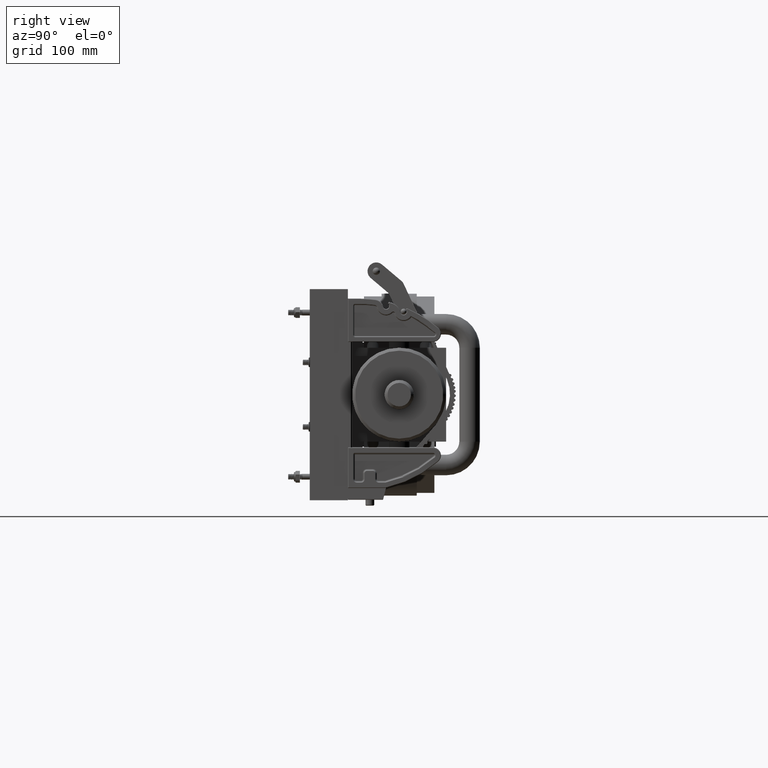
[diagram: clean part render]
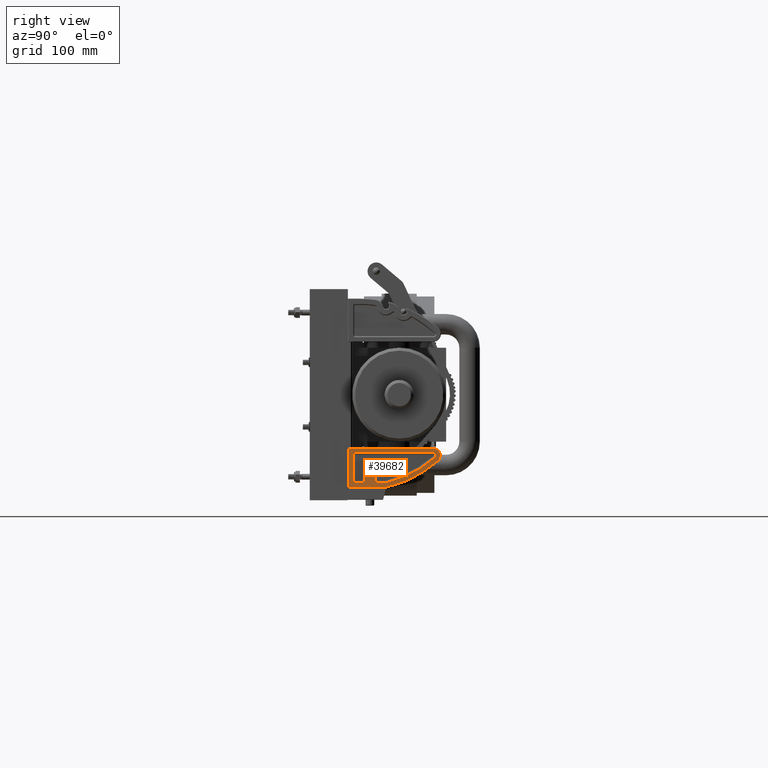
[diagram: same view with one face highlighted and labeled with its STEP entity id]
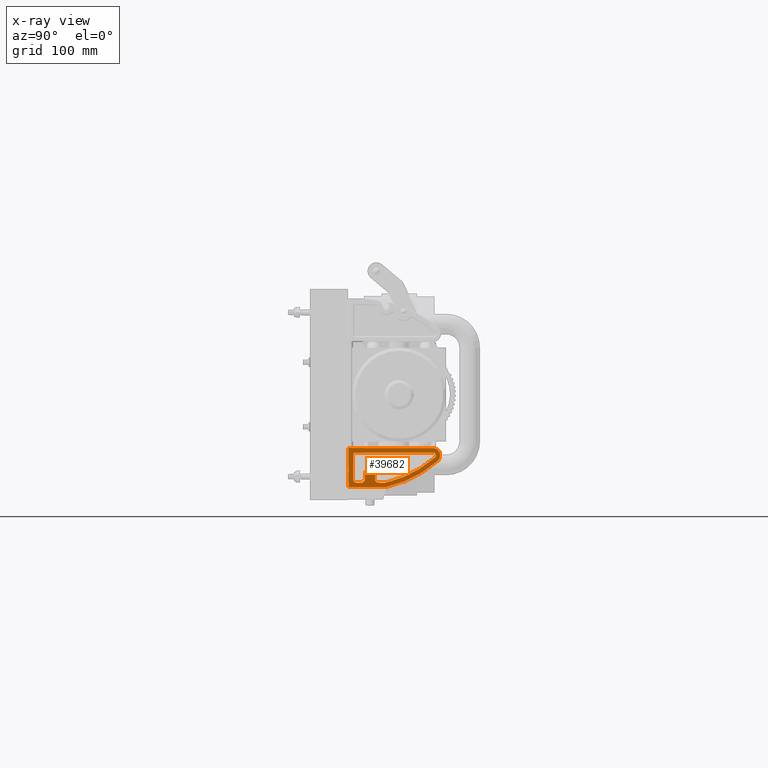
[diagram: x-ray of the same camera — body ghosted, the highlighted face saturated]
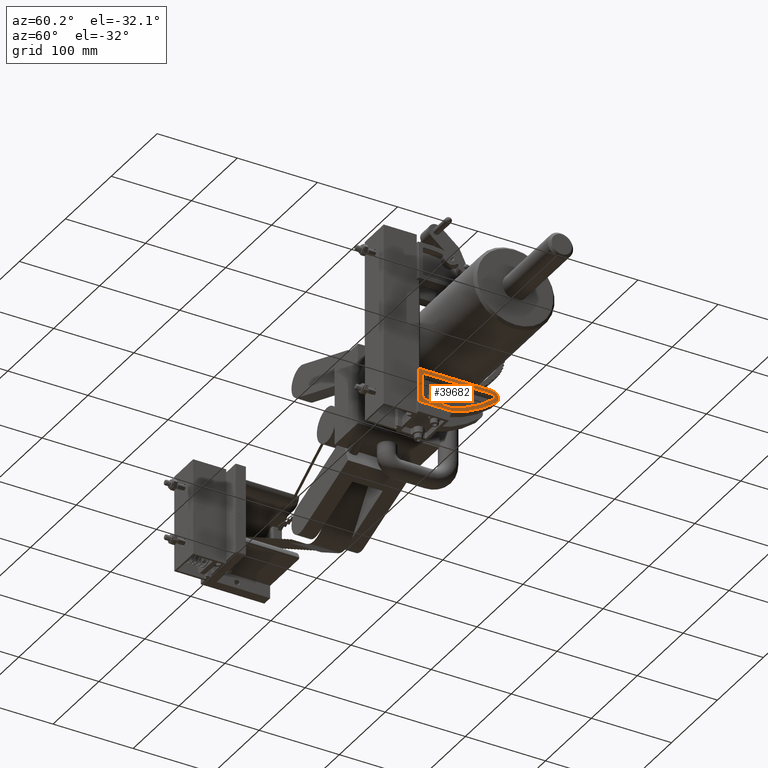
[diagram: same view with one face highlighted and labeled with its STEP entity id]
A machine part, right view. The second image highlights one B-rep face of the part: STEP entity #39682.
The next image is the same camera in x-ray: the body ghosted, the highlighted face saturated — about 0% of this face is hidden behind the body in this view.
A second angle (auxiliary view) of the same face is appended — the face is thin or edge-on in the first view.
In plain terms, the highlighted planar face has unit normal (-1, -0, -0).
Its self-contained STEP definition (entity closure, byte-faithful):
#254 = LINE ( 'NONE', #36982, #31489 ) ;
#265 = DIRECTION ( 'NONE',  ( 1.000000000000000000, -1.757097921636430500E-015, 1.317823441227322800E-015 ) ) ;
#607 = CARTESIAN_POINT ( 'NONE',  ( -1.009250000000006400, 0.8125000000000010000, -0.9375000000000021100 ) ) ;
#989 = CIRCLE ( 'NONE', #38435, 0.1234500000000016600 ) ;
#1190 = CARTESIAN_POINT ( 'NONE',  ( -1.696750000000008900, 0.4999999999999985000, -0.9375000000000044400 ) ) ;
#2075 = EDGE_CURVE ( 'NONE', #11903, #39959, #46503, .T. ) ;
#2553 = FACE_OUTER_BOUND ( 'NONE', #49952, .T. ) ;
#2572 = CARTESIAN_POINT ( 'NONE',  ( -0.3125000000000019400, 0.2187500000000002200, -0.9374999999999997800 ) ) ;
#2977 = DIRECTION ( 'NONE',  ( -7.269321377990959900E-016, -1.000000000000000000, 5.181990859787784600E-016 ) ) ;
#3417 = CARTESIAN_POINT ( 'NONE',  ( -0.5767967427319166100, 3.829225296210325300, -0.9375000000000044400 ) ) ;
#3935 = DIRECTION ( 'NONE',  ( 1.000000000000000000, 7.270329355284151900E-016, 1.426103065844199000E-015 ) ) ;
#4180 = VECTOR ( 'NONE', #49954, 39.37007874015748100 ) ;
#4211 = CARTESIAN_POINT ( 'NONE',  ( -1.353000000000006200, 1.312499999999998000, -0.9375000000000021100 ) ) ;
#4284 = DIRECTION ( 'NONE',  ( 1.195227855658757900E-015, -1.000000000000000000, 5.181990859787815200E-016 ) ) ;
#4768 = ORIENTED_EDGE ( 'NONE', *, *, #16823, .T. ) ;
#4983 = DIRECTION ( 'NONE',  ( -1.000000000000000000, -7.269321377990899800E-016, -1.415534356397068500E-015 ) ) ;
#5196 = DIRECTION ( 'NONE',  ( 1.415534356397079300E-015, -5.181990859787786600E-016, 1.000000000000000000 ) ) ;
#5225 = CIRCLE ( 'NONE', #30424, 0.09375000000000073600 ) ;
#5434 = LINE ( 'NONE', #2572, #36666 ) ;
#6434 = CARTESIAN_POINT ( 'NONE',  ( -1.353000000000000900, 0.2187499999999988600, -0.9375000000000021100 ) ) ;
#6513 = DIRECTION ( 'NONE',  ( -1.415534356397079300E-015, 5.181990859787786600E-016, -1.000000000000000000 ) ) ;
#6875 = EDGE_CURVE ( 'NONE', #22833, #51638, #21789, .T. ) ;
#6913 = VERTEX_POINT ( 'NONE', #47975 ) ;
#7977 = ORIENTED_EDGE ( 'NONE', *, *, #12870, .T. ) ;
#8325 = DIRECTION ( 'NONE',  ( 1.000000000000000000, 0.0000000000000000000, 1.748382715945116000E-015 ) ) ;
#8610 = CARTESIAN_POINT ( 'NONE',  ( -0.2187499999999985800, 0.3125000000000002800, -0.9374999999999997800 ) ) ;
#8671 = EDGE_CURVE ( 'NONE', #25555, #24184, #25809, .T. ) ;
#8678 = DIRECTION ( 'NONE',  ( 1.415534356397079300E-015, -5.181990859787786600E-016, 1.000000000000000000 ) ) ;
#9982 = VERTEX_POINT ( 'NONE', #37273 ) ;
#10396 = VERTEX_POINT ( 'NONE', #11902 ) ;
#10566 = LINE ( 'NONE', #19194, #52636 ) ;
#11499 = EDGE_CURVE ( 'NONE', #21574, #12520, #47502, .T. ) ;
#11902 = CARTESIAN_POINT ( 'NONE',  ( -0.03124999999999983700, 3.625131516786318300, -0.9375000000000032200 ) ) ;
#11903 = VERTEX_POINT ( 'NONE', #41913 ) ;
#12031 = ORIENTED_EDGE ( 'NONE', *, *, #28996, .T. ) ;
#12123 = CARTESIAN_POINT ( 'NONE',  ( -1.509250000000008200, 1.312499999999998000, -0.9375000000000044400 ) ) ;
#12294 = EDGE_CURVE ( 'NONE', #21683, #50777, #42344, .T. ) ;
#12520 = VERTEX_POINT ( 'NONE', #42672 ) ;
#12549 = DIRECTION ( 'NONE',  ( 1.000000000000000000, 7.269321377990899800E-016, 1.415534356397068500E-015 ) ) ;
#12870 = EDGE_CURVE ( 'NONE', #41686, #25555, #254, .T. ) ;
#13240 = AXIS2_PLACEMENT_3D ( 'NONE', #49031, #24670, #265 ) ;
#15024 = VECTOR ( 'NONE', #22419, 39.37007874015748100 ) ;
#15242 = ORIENTED_EDGE ( 'NONE', *, *, #33949, .T. ) ;
#16823 = EDGE_CURVE ( 'NONE', #10396, #42800, #10566, .T. ) ;
#16988 = ORIENTED_EDGE ( 'NONE', *, *, #52745, .T. ) ;
#16996 = DIRECTION ( 'NONE',  ( -7.269321377990959900E-016, -1.000000000000000000, 5.181990859787784600E-016 ) ) ;
#17082 = CARTESIAN_POINT ( 'NONE',  ( -1.353000000000009100, 0.7187499999999995600, -0.9375000000000021100 ) ) ;
#17566 = CARTESIAN_POINT ( 'NONE',  ( -0.3422000000000013400, 3.625131516786317400, -0.9375000000000021100 ) ) ;
#17805 = EDGE_CURVE ( 'NONE', #38956, #25540, #18142, .T. ) ;
#18142 = LINE ( 'NONE', #24218, #38531 ) ;
#19194 = CARTESIAN_POINT ( 'NONE',  ( -0.03125000000000147800, 0.5000000000000010000, -0.9375000000000008900 ) ) ;
#19207 = CARTESIAN_POINT ( 'NONE',  ( -1.509250000000009300, 1.312499999999998000, -0.9375000000000044400 ) ) ;
#19482 = CARTESIAN_POINT ( 'NONE',  ( 3.250000000000018700, 0.5000000000000023300, -0.9374999999999974500 ) ) ;
#19999 = CARTESIAN_POINT ( 'NONE',  ( -1.353000000000006200, 1.156250000000000000, -0.9375000000000021100 ) ) ;
#20526 = ORIENTED_EDGE ( 'NONE', *, *, #30674, .T. ) ;
#21403 = CIRCLE ( 'NONE', #13240, 0.3109500000000026100 ) ;
#21574 = VERTEX_POINT ( 'NONE', #38877 ) ;
#21638 = DIRECTION ( 'NONE',  ( 1.000000000000000000, 0.0000000000000000000, 1.106459292695109900E-015 ) ) ;
#21683 = VERTEX_POINT ( 'NONE', #27323 ) ;
#21789 = CIRCLE ( 'NONE', #49985, 0.1562500000000011100 ) ;
#22251 = AXIS2_PLACEMENT_3D ( 'NONE', #42025, #45953, #50188 ) ;
#22338 = ORIENTED_EDGE ( 'NONE', *, *, #43320, .T. ) ;
#22419 = DIRECTION ( 'NONE',  ( -7.269321377990959900E-016, -1.000000000000000000, 5.181990859787784600E-016 ) ) ;
#22503 = DIRECTION ( 'NONE',  ( -1.415534356397079300E-015, 5.181990859787786600E-016, -1.000000000000000000 ) ) ;
#22833 = VERTEX_POINT ( 'NONE', #32363 ) ;
#23058 = CARTESIAN_POINT ( 'NONE',  ( -1.353000000000000900, 0.3750000000000007800, -0.9375000000000021100 ) ) ;
#23582 = DIRECTION ( 'NONE',  ( 1.000000000000000000, 7.270869001740882000E-016, 1.427244655897284200E-015 ) ) ;
#23624 = ORIENTED_EDGE ( 'NONE', *, *, #8671, .T. ) ;
#23650 = CARTESIAN_POINT ( 'NONE',  ( -0.03125000000000147800, 0.03124999999999983700, -0.9375000000000008900 ) ) ;
#23769 = AXIS2_PLACEMENT_3D ( 'NONE', #46904, #22503, #50979 ) ;
#24184 = VERTEX_POINT ( 'NONE', #41174 ) ;
#24218 = CARTESIAN_POINT ( 'NONE',  ( -0.2187500000000002200, 3.625131516786318300, -0.9375000000000021100 ) ) ;
#24243 = FACE_BOUND ( 'NONE', #39023, .T. ) ;
#24381 = EDGE_CURVE ( 'NONE', #42800, #21574, #46034, .T. ) ;
#24670 = DIRECTION ( 'NONE',  ( -1.415534356397079300E-015, 5.181990859787786600E-016, -1.000000000000000000 ) ) ;
#24833 = LINE ( 'NONE', #607, #45226 ) ;
#24860 = VECTOR ( 'NONE', #4284, 39.37007874015748100 ) ;
#25199 = EDGE_CURVE ( 'NONE', #36459, #11903, #46576, .T. ) ;
#25382 = CARTESIAN_POINT ( 'NONE',  ( -0.4353370570517948700, 3.706158617831159000, -0.9375000000000021100 ) ) ;
#25540 = VERTEX_POINT ( 'NONE', #30275 ) ;
#25555 = VERTEX_POINT ( 'NONE', #30452 ) ;
#25809 = CIRCLE ( 'NONE', #23769, 0.09375000000000073600 ) ;
#25865 = LINE ( 'NONE', #50717, #15024 ) ;
#26351 = EDGE_CURVE ( 'NONE', #24184, #39069, #24833, .T. ) ;
#27167 = DIRECTION ( 'NONE',  ( 1.000000000000000000, 8.741913579725580200E-016, 1.748382715945116000E-015 ) ) ;
#27323 = CARTESIAN_POINT ( 'NONE',  ( -1.103000000000005300, 0.7187500000000008900, -0.9375000000000021100 ) ) ;
#27747 = ORIENTED_EDGE ( 'NONE', *, *, #47048, .T. ) ;
#28206 = AXIS2_PLACEMENT_3D ( 'NONE', #4211, #32723, #8325 ) ;
#28354 = DIRECTION ( 'NONE',  ( 1.415534356397079300E-015, -5.181990859787786600E-016, 1.000000000000000000 ) ) ;
#28996 = EDGE_CURVE ( 'NONE', #30311, #10396, #21403, .T. ) ;
#29009 = VECTOR ( 'NONE', #4983, 39.37007874015748100 ) ;
#29206 = AXIS2_PLACEMENT_3D ( 'NONE', #52729, #28354, #3935 ) ;
#29607 = CARTESIAN_POINT ( 'NONE',  ( -1.353000000000000900, 0.5624999999999997800, -0.9375000000000021100 ) ) ;
#30118 = DIRECTION ( 'NONE',  ( -1.000000000000000000, -8.493927731813267200E-016, -1.415534356397068500E-015 ) ) ;
#30241 = ORIENTED_EDGE ( 'NONE', *, *, #26351, .T. ) ;
#30275 = CARTESIAN_POINT ( 'NONE',  ( -0.2187500000000002200, 3.625131516786318300, -0.9375000000000021100 ) ) ;
#30304 = CIRCLE ( 'NONE', #41560, 0.09375000000000073600 ) ;
#30311 = VERTEX_POINT ( 'NONE', #3417 ) ;
#30424 = AXIS2_PLACEMENT_3D ( 'NONE', #33096, #8678, #37201 ) ;
#30452 = CARTESIAN_POINT ( 'NONE',  ( -1.103000000000005300, 1.156250000000000400, -0.9375000000000021100 ) ) ;
#30484 = EDGE_CURVE ( 'NONE', #50777, #6913, #44365, .T. ) ;
#30674 = EDGE_CURVE ( 'NONE', #6913, #22833, #25865, .T. ) ;
#30919 = CARTESIAN_POINT ( 'NONE',  ( -1.103000000000005300, 0.8125000000000010000, -0.9375000000000021100 ) ) ;
#31236 = EDGE_CURVE ( 'NONE', #51638, #9982, #5434, .T. ) ;
#31489 = VECTOR ( 'NONE', #12549, 39.37007874015748100 ) ;
#32005 = DIRECTION ( 'NONE',  ( 1.000000000000000000, -9.354119042779709500E-017, 1.415534356397068900E-015 ) ) ;
#32363 = CARTESIAN_POINT ( 'NONE',  ( -1.509250000000008900, 0.3749999999999996700, -0.9375000000000021100 ) ) ;
#32424 = ORIENTED_EDGE ( 'NONE', *, *, #25199, .T. ) ;
#32723 = DIRECTION ( 'NONE',  ( 1.415534356397079300E-015, -5.181990859787786600E-016, 1.000000000000000000 ) ) ;
#33096 = CARTESIAN_POINT ( 'NONE',  ( -0.3124999999999997200, 0.3125000000000000000, -0.9374999999999997800 ) ) ;
#33690 = DIRECTION ( 'NONE',  ( 1.000000000000000000, 8.741913579725580200E-016, 1.748382715945116000E-015 ) ) ;
#33936 = VECTOR ( 'NONE', #30118, 39.37007874015748100 ) ;
#33949 = EDGE_CURVE ( 'NONE', #39959, #41686, #44051, .T. ) ;
#34352 = ORIENTED_EDGE ( 'NONE', *, *, #30484, .T. ) ;
#34677 = AXIS2_PLACEMENT_3D ( 'NONE', #19482, #47979, #23582 ) ;
#35021 = DIRECTION ( 'NONE',  ( 1.000000000000000000, 0.0000000000000000000, 1.456985596620928900E-015 ) ) ;
#36459 = VERTEX_POINT ( 'NONE', #25382 ) ;
#36666 = VECTOR ( 'NONE', #32005, 39.37007874015748100 ) ;
#36695 = ORIENTED_EDGE ( 'NONE', *, *, #17805, .T. ) ;
#36982 = CARTESIAN_POINT ( 'NONE',  ( -1.103000000000006400, 1.156250000000000400, -0.9375000000000021100 ) ) ;
#37201 = DIRECTION ( 'NONE',  ( 1.000000000000000000, 7.284927983104644700E-016, 1.456985596620928900E-015 ) ) ;
#37273 = CARTESIAN_POINT ( 'NONE',  ( -0.3125000000000019400, 0.2187500000000002200, -0.9374999999999997800 ) ) ;
#38435 = AXIS2_PLACEMENT_3D ( 'NONE', #17566, #46050, #21638 ) ;
#38531 = VECTOR ( 'NONE', #52708, 39.37007874015748100 ) ;
#38639 = ORIENTED_EDGE ( 'NONE', *, *, #2075, .T. ) ;
#38877 = CARTESIAN_POINT ( 'NONE',  ( -1.696750000000008900, 0.03124999999999601400, -0.9375000000000021100 ) ) ;
#38956 = VERTEX_POINT ( 'NONE', #8610 ) ;
#39023 = EDGE_LOOP ( 'NONE', ( #32424, #38639, #15242, #7977, #23624, #30241, #48505, #44426, #34352, #20526, #46731, #39739, #27747, #36695, #16988 ) ) ;
#39069 = VERTEX_POINT ( 'NONE', #46536 ) ;
#39682 = ADVANCED_FACE ( 'NONE', ( #24243, #2553 ), #46132, .F. ) ;
#39739 = ORIENTED_EDGE ( 'NONE', *, *, #31236, .T. ) ;
#39959 = VERTEX_POINT ( 'NONE', #19207 ) ;
#41174 = CARTESIAN_POINT ( 'NONE',  ( -1.009250000000005300, 1.062500000000000400, -0.9375000000000021100 ) ) ;
#41560 = AXIS2_PLACEMENT_3D ( 'NONE', #30919, #6513, #35021 ) ;
#41686 = VERTEX_POINT ( 'NONE', #19999 ) ;
#41913 = CARTESIAN_POINT ( 'NONE',  ( -1.509250000000009300, 1.600318928434918900, -0.9375000000000044400 ) ) ;
#42025 = CARTESIAN_POINT ( 'NONE',  ( 3.250000000000018700, 0.5000000000000023300, -0.9374999999999974500 ) ) ;
#42344 = LINE ( 'NONE', #17082, #29009 ) ;
#42385 = CARTESIAN_POINT ( 'NONE',  ( 3.250000000000018700, 0.03125000000000256700, -0.9374999999999951200 ) ) ;
#42496 = CIRCLE ( 'NONE', #34677, 5.072288870235084300 ) ;
#42672 = CARTESIAN_POINT ( 'NONE',  ( -1.696750000000009500, 1.621507387675317000, -0.9375000000000044400 ) ) ;
#42800 = VERTEX_POINT ( 'NONE', #23650 ) ;
#43084 = AXIS2_PLACEMENT_3D ( 'NONE', #29607, #5196, #33690 ) ;
#43320 = EDGE_CURVE ( 'NONE', #12520, #30311, #42496, .T. ) ;
#43394 = CARTESIAN_POINT ( 'NONE',  ( -1.353000000000009100, 0.7187499999999995600, -0.9375000000000021100 ) ) ;
#44051 = CIRCLE ( 'NONE', #28206, 0.1562500000000011100 ) ;
#44365 = CIRCLE ( 'NONE', #43084, 0.1562500000000011100 ) ;
#44426 = ORIENTED_EDGE ( 'NONE', *, *, #12294, .T. ) ;
#44623 = EDGE_CURVE ( 'NONE', #39069, #21683, #30304, .T. ) ;
#45226 = VECTOR ( 'NONE', #16996, 39.37007874015748100 ) ;
#45953 = DIRECTION ( 'NONE',  ( -1.415534356397067900E-015, -5.181990859787806300E-016, 1.000000000000000000 ) ) ;
#46034 = LINE ( 'NONE', #42385, #33936 ) ;
#46050 = DIRECTION ( 'NONE',  ( 1.415534356397079300E-015, -5.181990859787786600E-016, 1.000000000000000000 ) ) ;
#46112 = ORIENTED_EDGE ( 'NONE', *, *, #11499, .T. ) ;
#46132 = PLANE ( 'NONE',  #22251 ) ;
#46503 = LINE ( 'NONE', #12123, #24860 ) ;
#46536 = CARTESIAN_POINT ( 'NONE',  ( -1.009250000000006400, 0.8125000000000010000, -0.9375000000000021100 ) ) ;
#46576 = CIRCLE ( 'NONE', #29206, 4.884788870235081700 ) ;
#46731 = ORIENTED_EDGE ( 'NONE', *, *, #6875, .T. ) ;
#46904 = CARTESIAN_POINT ( 'NONE',  ( -1.103000000000005300, 1.062500000000000400, -0.9375000000000021100 ) ) ;
#47048 = EDGE_CURVE ( 'NONE', #9982, #38956, #5225, .T. ) ;
#47502 = LINE ( 'NONE', #1190, #4180 ) ;
#47975 = CARTESIAN_POINT ( 'NONE',  ( -1.509250000000008900, 0.5624999999999986700, -0.9375000000000021100 ) ) ;
#47979 = DIRECTION ( 'NONE',  ( -1.415534356397079300E-015, 5.181990859787786600E-016, -1.000000000000000000 ) ) ;
#48505 = ORIENTED_EDGE ( 'NONE', *, *, #44623, .T. ) ;
#49031 = CARTESIAN_POINT ( 'NONE',  ( -0.3422000000000013400, 3.625131516786317400, -0.9375000000000021100 ) ) ;
#49952 = EDGE_LOOP ( 'NONE', ( #12031, #4768, #51613, #46112, #22338 ) ) ;
#49954 = DIRECTION ( 'NONE',  ( 5.588184151120625900E-016, 1.000000000000000000, -5.181990859787789600E-016 ) ) ;
#49985 = AXIS2_PLACEMENT_3D ( 'NONE', #23058, #51523, #27167 ) ;
#50188 = DIRECTION ( 'NONE',  ( 1.000000000000000000, 7.269321377990898800E-016, 1.415534356397068300E-015 ) ) ;
#50717 = CARTESIAN_POINT ( 'NONE',  ( -1.509250000000008900, 0.3749999999999996700, -0.9375000000000021100 ) ) ;
#50777 = VERTEX_POINT ( 'NONE', #43394 ) ;
#50979 = DIRECTION ( 'NONE',  ( 1.000000000000000000, 0.0000000000000000000, 1.456985596620928900E-015 ) ) ;
#51523 = DIRECTION ( 'NONE',  ( 1.415534356397079300E-015, -5.181990859787786600E-016, 1.000000000000000000 ) ) ;
#51613 = ORIENTED_EDGE ( 'NONE', *, *, #24381, .T. ) ;
#51638 = VERTEX_POINT ( 'NONE', #6434 ) ;
#52636 = VECTOR ( 'NONE', #2977, 39.37007874015748100 ) ;
#52708 = DIRECTION ( 'NONE',  ( 1.118653278654932000E-015, 1.000000000000000000, -5.181990859787781700E-016 ) ) ;
#52729 = CARTESIAN_POINT ( 'NONE',  ( 3.250000000000018700, 0.5000000000000023300, -0.9374999999999974500 ) ) ;
#52745 = EDGE_CURVE ( 'NONE', #25540, #36459, #989, .T. ) ;